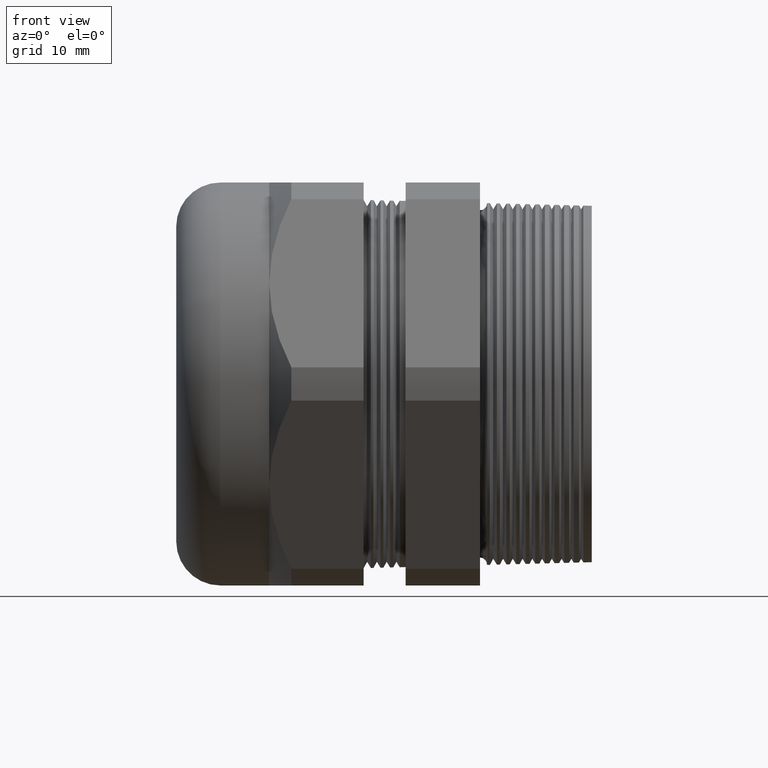
[diagram: clean part render]
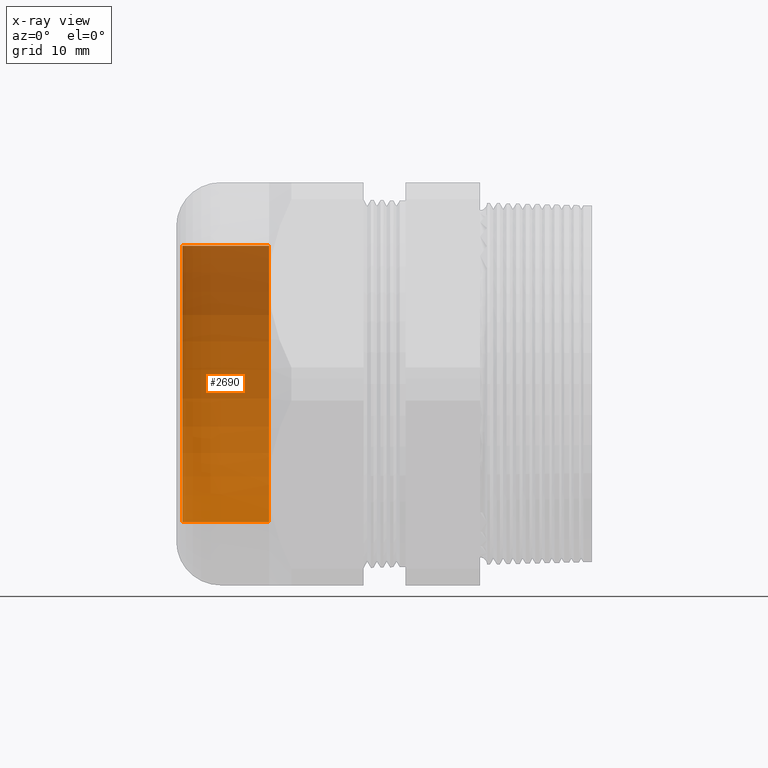
[diagram: x-ray — body ghosted, one internal face saturated and labeled with its STEP entity id]
A machine part, front view, then the same camera in x-ray: the body is ghosted and one INTERNAL B-rep face — a face not visible from any outside direction — is saturated and labeled: STEP entity #2690.
In plain terms, the highlighted cylindrical surface (partial cylindrical patch) has radius 22.2885 mm, axis along (1, 0, 0).
Its self-contained STEP definition (entity closure, byte-faithful):
#326 = DIRECTION ( 'NONE',  ( 0.0000000000000000000, 0.0000000000000000000, -1.000000000000000000 ) ) ;
#328 = DIRECTION ( 'NONE',  ( 1.000000000000000000, 0.0000000000000000000, 0.0000000000000000000 ) ) ;
#329 = CARTESIAN_POINT ( 'NONE',  ( -2.200999999999999600, 0.0000000000000000000, 0.0000000000000000000 ) ) ;
#330 = AXIS2_PLACEMENT_3D ( 'NONE', #329, #328, #326 ) ;
#331 = DIRECTION ( 'NONE',  ( 0.0000000000000000000, 0.0000000000000000000, -1.000000000000000000 ) ) ;
#332 = DIRECTION ( 'NONE',  ( 1.000000000000000000, 0.0000000000000000000, 0.0000000000000000000 ) ) ;
#333 = CARTESIAN_POINT ( 'NONE',  ( 0.0000000000000000000, 0.0000000000000000000, 0.0000000000000000000 ) ) ;
#334 = AXIS2_PLACEMENT_3D ( 'NONE', #333, #332, #331 ) ;
#335 = CIRCLE ( 'NONE', #330, 0.8774999999999999500 ) ;
#337 = CYLINDRICAL_SURFACE ( 'NONE', #334, 0.8774999999999999500 ) ;
#338 = FACE_OUTER_BOUND ( 'NONE', #2693, .T. ) ;
#382 = CARTESIAN_POINT ( 'NONE',  ( -2.200999999999999600, 1.074627566251802300E-016, 0.8774999999999999500 ) ) ;
#430 = DIRECTION ( 'NONE',  ( 1.000000000000000000, 0.0000000000000000000, 0.0000000000000000000 ) ) ;
#431 = VECTOR ( 'NONE', #430, 39.37007874015748100 ) ;
#432 = CARTESIAN_POINT ( 'NONE',  ( 0.0000000000000000000, 0.0000000000000000000, -0.8774999999999999500 ) ) ;
#433 = LINE ( 'NONE', #432, #431 ) ;
#434 = CARTESIAN_POINT ( 'NONE',  ( -1.649449999999999600, 0.0000000000000000000, -0.8774999999999999500 ) ) ;
#435 = DIRECTION ( 'NONE',  ( 0.0000000000000000000, 0.0000000000000000000, -1.000000000000000000 ) ) ;
#436 = DIRECTION ( 'NONE',  ( 1.000000000000000000, 0.0000000000000000000, 0.0000000000000000000 ) ) ;
#437 = CARTESIAN_POINT ( 'NONE',  ( -1.649449999999999600, 0.0000000000000000000, 0.0000000000000000000 ) ) ;
#438 = AXIS2_PLACEMENT_3D ( 'NONE', #437, #436, #435 ) ;
#439 = CIRCLE ( 'NONE', #438, 0.8774999999999999500 ) ;
#440 = CARTESIAN_POINT ( 'NONE',  ( -1.649449999999999600, 1.074627566251802300E-016, 0.8774999999999999500 ) ) ;
#441 = DIRECTION ( 'NONE',  ( 1.000000000000000000, 0.0000000000000000000, 0.0000000000000000000 ) ) ;
#442 = VECTOR ( 'NONE', #441, 39.37007874015748100 ) ;
#443 = CARTESIAN_POINT ( 'NONE',  ( 0.0000000000000000000, 1.074627566251802300E-016, 0.8774999999999999500 ) ) ;
#450 = LINE ( 'NONE', #443, #442 ) ;
#483 = CARTESIAN_POINT ( 'NONE',  ( -2.200999999999999600, 0.0000000000000000000, -0.8774999999999999500 ) ) ;
#2690 = ADVANCED_FACE ( 'NONE', ( #338 ), #337, .T. ) ;
#2692 = EDGE_CURVE ( 'NONE', #2742, #2701, #335, .T. ) ;
#2693 = EDGE_LOOP ( 'NONE', ( #2743, #2744, #2732, #2735 ) ) ;
#2701 = VERTEX_POINT ( 'NONE', #382 ) ;
#2730 = EDGE_CURVE ( 'NONE', #2701, #2731, #450, .T. ) ;
#2731 = VERTEX_POINT ( 'NONE', #440 ) ;
#2732 = ORIENTED_EDGE ( 'NONE', *, *, #2733, .F. ) ;
#2733 = EDGE_CURVE ( 'NONE', #2734, #2731, #439, .T. ) ;
#2734 = VERTEX_POINT ( 'NONE', #434 ) ;
#2735 = ORIENTED_EDGE ( 'NONE', *, *, #2736, .F. ) ;
#2736 = EDGE_CURVE ( 'NONE', #2742, #2734, #433, .T. ) ;
#2742 = VERTEX_POINT ( 'NONE', #483 ) ;
#2743 = ORIENTED_EDGE ( 'NONE', *, *, #2692, .T. ) ;
#2744 = ORIENTED_EDGE ( 'NONE', *, *, #2730, .T. ) ;